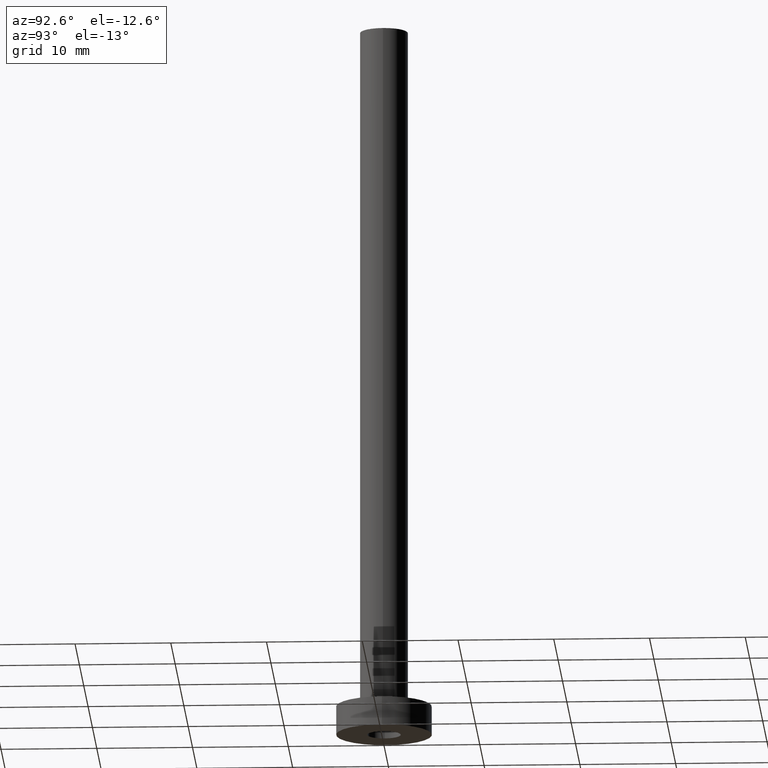
[diagram: clean part render]
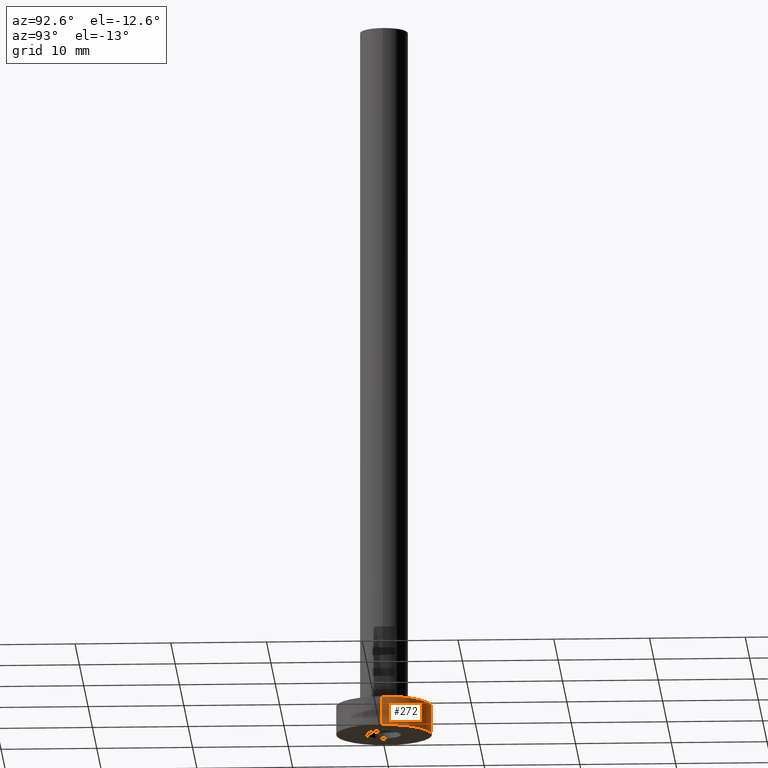
[diagram: same view with one face highlighted and labeled with its STEP entity id]
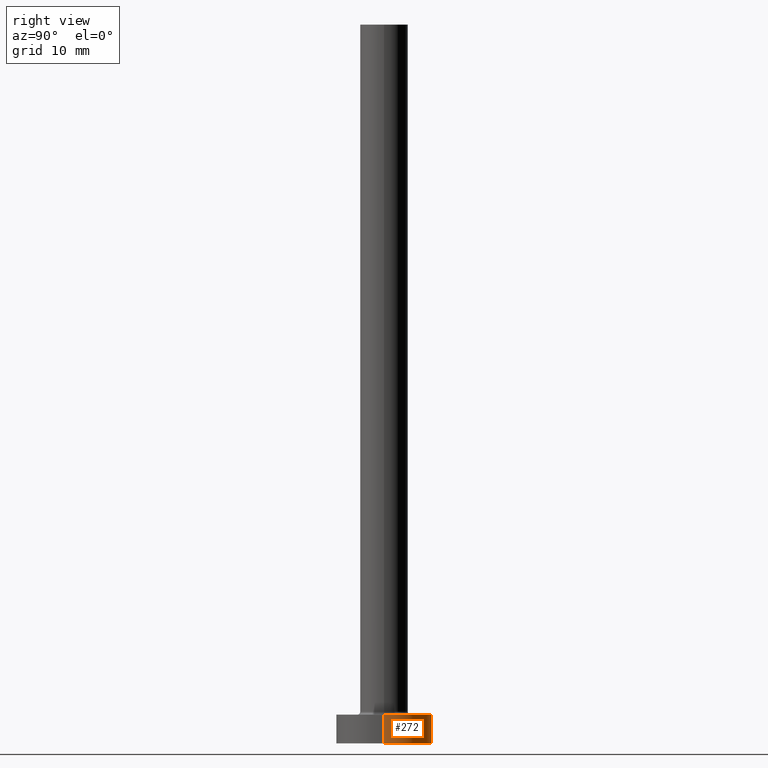
[diagram: same view with one face highlighted and labeled with its STEP entity id]
A machine part, auxiliary view. The second image highlights one B-rep face of the part: STEP entity #272.
A second angle (right view) of the same face is appended — the face is thin or edge-on in the first view.
In plain terms, the highlighted cylindrical surface (partial cylindrical patch) has radius 5 mm, axis along (-0, -0, -1).
Its self-contained STEP definition (entity closure, byte-faithful):
#2 = ORIENTED_EDGE ( 'NONE', *, *, #396, .T. ) ;
#16 = CIRCLE ( 'NONE', #337, 5.000000000000000000 ) ;
#26 = CARTESIAN_POINT ( 'NONE',  ( 5.000000000000000000, 6.123233995736766282E-16, 3.000000000000000000 ) ) ;
#31 = VERTEX_POINT ( 'NONE', #43 ) ;
#38 = EDGE_CURVE ( 'NONE', #31, #358, #16, .T. ) ;
#43 = CARTESIAN_POINT ( 'NONE',  ( 5.000000000000000000, 6.123233995736766282E-16, 3.000000000000000000 ) ) ;
#49 = LINE ( 'NONE', #332, #300 ) ;
#73 = VERTEX_POINT ( 'NONE', #397 ) ;
#84 = EDGE_LOOP ( 'NONE', ( #252, #2, #341, #363 ) ) ;
#97 = CYLINDRICAL_SURFACE ( 'NONE', #199, 5.000000000000000000 ) ;
#114 = DIRECTION ( 'NONE',  ( 0.000000000000000000, 0.000000000000000000, 1.000000000000000000 ) ) ;
#128 = VECTOR ( 'NONE', #313, 1000.000000000000000 ) ;
#133 = FACE_OUTER_BOUND ( 'NONE', #84, .T. ) ;
#134 = DIRECTION ( 'NONE',  ( -1.000000000000000000, 0.000000000000000000, 0.000000000000000000 ) ) ;
#144 = EDGE_CURVE ( 'NONE', #358, #179, #49, .T. ) ;
#151 = DIRECTION ( 'NONE',  ( 1.000000000000000000, 0.000000000000000000, 0.000000000000000000 ) ) ;
#159 = DIRECTION ( 'NONE',  ( 0.000000000000000000, 0.000000000000000000, 1.000000000000000000 ) ) ;
#167 = EDGE_CURVE ( 'NONE', #73, #179, #426, .T. ) ;
#179 = VERTEX_POINT ( 'NONE', #327 ) ;
#199 = AXIS2_PLACEMENT_3D ( 'NONE', #270, #409, #134 ) ;
#227 = LINE ( 'NONE', #26, #128 ) ;
#252 = ORIENTED_EDGE ( 'NONE', *, *, #38, .F. ) ;
#270 = CARTESIAN_POINT ( 'NONE',  ( 0.000000000000000000, 0.000000000000000000, 3.000000000000000000 ) ) ;
#272 = ADVANCED_FACE ( 'NONE', ( #133 ), #97, .T. ) ;
#288 = CARTESIAN_POINT ( 'NONE',  ( -5.000000000000000000, 0.000000000000000000, 3.000000000000000000 ) ) ;
#295 = DIRECTION ( 'NONE',  ( 1.000000000000000000, 0.000000000000000000, 0.000000000000000000 ) ) ;
#296 = AXIS2_PLACEMENT_3D ( 'NONE', #333, #159, #295 ) ;
#300 = VECTOR ( 'NONE', #408, 1000.000000000000000 ) ;
#313 = DIRECTION ( 'NONE',  ( -0.000000000000000000, -0.000000000000000000, -1.000000000000000000 ) ) ;
#327 = CARTESIAN_POINT ( 'NONE',  ( -5.000000000000000000, 0.000000000000000000, 0.000000000000000000 ) ) ;
#332 = CARTESIAN_POINT ( 'NONE',  ( -5.000000000000000000, 0.000000000000000000, 3.000000000000000000 ) ) ;
#333 = CARTESIAN_POINT ( 'NONE',  ( 0.000000000000000000, 0.000000000000000000, 0.000000000000000000 ) ) ;
#337 = AXIS2_PLACEMENT_3D ( 'NONE', #393, #114, #151 ) ;
#341 = ORIENTED_EDGE ( 'NONE', *, *, #167, .T. ) ;
#358 = VERTEX_POINT ( 'NONE', #288 ) ;
#363 = ORIENTED_EDGE ( 'NONE', *, *, #144, .F. ) ;
#393 = CARTESIAN_POINT ( 'NONE',  ( 0.000000000000000000, 0.000000000000000000, 3.000000000000000000 ) ) ;
#396 = EDGE_CURVE ( 'NONE', #31, #73, #227, .T. ) ;
#397 = CARTESIAN_POINT ( 'NONE',  ( 5.000000000000000000, 6.123233995736766282E-16, 0.000000000000000000 ) ) ;
#408 = DIRECTION ( 'NONE',  ( -0.000000000000000000, -0.000000000000000000, -1.000000000000000000 ) ) ;
#409 = DIRECTION ( 'NONE',  ( -0.000000000000000000, -0.000000000000000000, -1.000000000000000000 ) ) ;
#426 = CIRCLE ( 'NONE', #296, 5.000000000000000000 ) ;